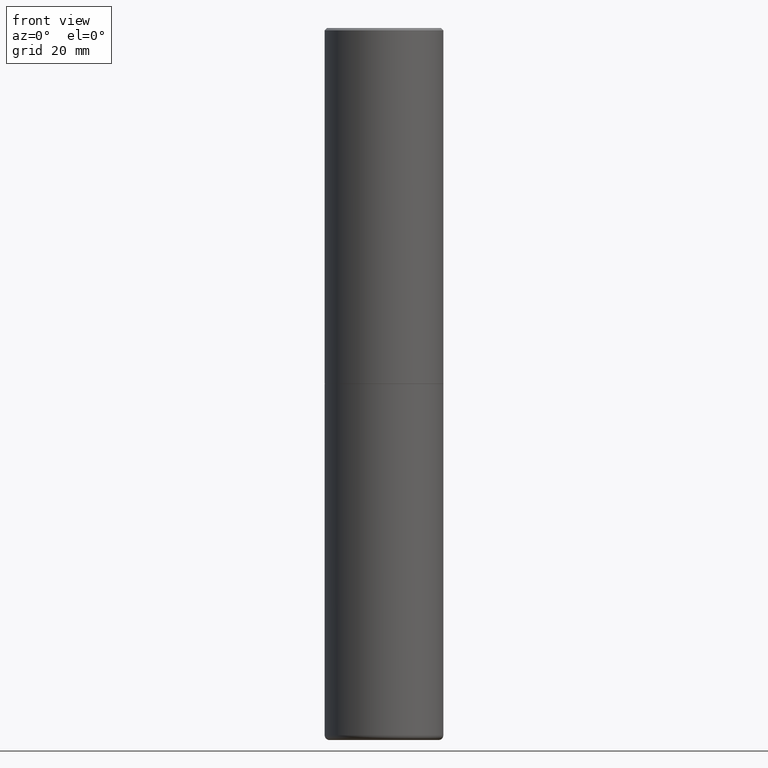
[diagram: clean part render]
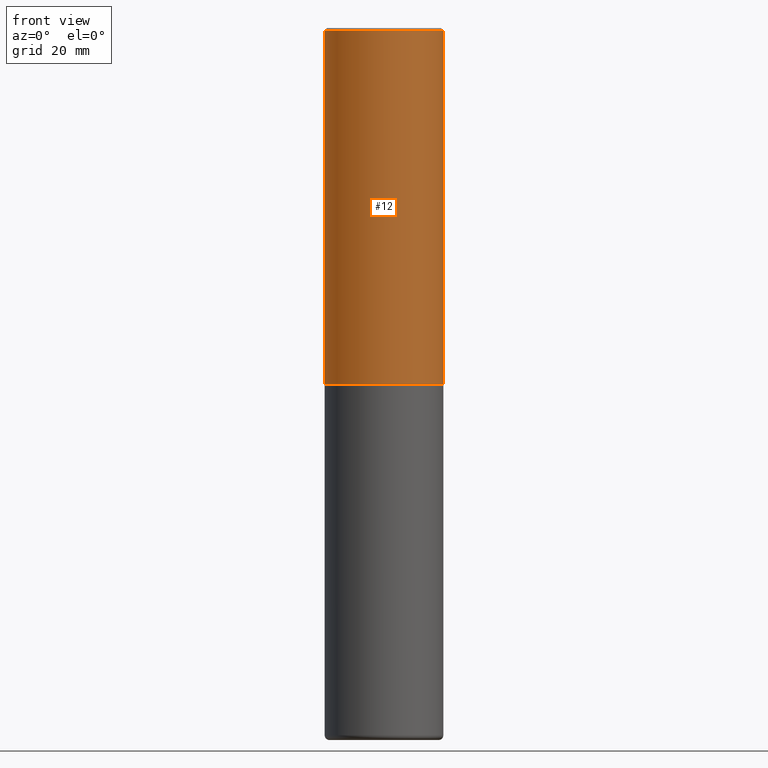
[diagram: same view with one face highlighted and labeled with its STEP entity id]
A machine part, front view. The second image highlights one B-rep face of the part: STEP entity #12.
In plain terms, the highlighted cylindrical surface (partial cylindrical patch) has radius 12.5006 mm, axis along (-0, 0, 1).
Its self-contained STEP definition (entity closure, byte-faithful):
#6 = CARTESIAN_POINT ( 'NONE',  ( 0.4921500000000000319, -3.446223716380123138E-15, -0.02000000000000010797 ) ) ;
#11 = AXIS2_PLACEMENT_3D ( 'NONE', #286, #346, #257 ) ;
#12 = ADVANCED_FACE ( 'NONE', ( #318 ), #151, .T. ) ;
#27 = VERTEX_POINT ( 'NONE', #185 ) ;
#33 = VERTEX_POINT ( 'NONE', #6 ) ;
#37 = LINE ( 'NONE', #223, #174 ) ;
#54 = AXIS2_PLACEMENT_3D ( 'NONE', #118, #288, #285 ) ;
#62 = DIRECTION ( 'NONE',  ( -2.445468806185136597E-29, 3.491481338843145583E-15, 1.000000000000000000 ) ) ;
#84 = CARTESIAN_POINT ( 'NONE',  ( 0.4921500000000003094, -1.374247054968661252E-14, -2.951700000000000212 ) ) ;
#89 = VERTEX_POINT ( 'NONE', #84 ) ;
#93 = DIRECTION ( 'NONE',  ( -2.445468806185136877E-29, 3.491481338843145188E-15, 1.000000000000000000 ) ) ;
#98 = ORIENTED_EDGE ( 'NONE', *, *, #320, .T. ) ;
#106 = ORIENTED_EDGE ( 'NONE', *, *, #277, .F. ) ;
#114 = CIRCLE ( 'NONE', #11, 0.4921500000000003094 ) ;
#118 = CARTESIAN_POINT ( 'NONE',  ( 4.890937612370299433E-31, -6.982962677686328587E-17, -0.02000000000000010797 ) ) ;
#120 = DIRECTION ( 'NONE',  ( -2.445468806185136877E-29, 3.491481338843145188E-15, 1.000000000000000000 ) ) ;
#151 = CYLINDRICAL_SURFACE ( 'NONE', #387, 0.4921500000000001984 ) ;
#167 = EDGE_CURVE ( 'NONE', #281, #33, #235, .T. ) ;
#174 = VECTOR ( 'NONE', #93, 39.37007874015748143 ) ;
#185 = CARTESIAN_POINT ( 'NONE',  ( -0.4921500000000003094, -1.690881473276752982E-15, -2.951700000000000212 ) ) ;
#223 = CARTESIAN_POINT ( 'NONE',  ( -0.4921500000000001984, 3.496936074043334475E-15, -2.420853904668952630E-29 ) ) ;
#224 = LINE ( 'NONE', #260, #297 ) ;
#235 = CIRCLE ( 'NONE', #54, 0.4921500000000000319 ) ;
#257 = DIRECTION ( 'NONE',  ( 1.000000000000000000, -6.982962677686265922E-15, 0.000000000000000000 ) ) ;
#258 = DIRECTION ( 'NONE',  ( 1.000000000000000000, -6.982962677686266711E-15, 4.876176775795935232E-29 ) ) ;
#260 = CARTESIAN_POINT ( 'NONE',  ( 0.4921500000000001984, -3.436665081823297354E-15, 2.399810400207970443E-29 ) ) ;
#277 = EDGE_CURVE ( 'NONE', #27, #281, #37, .T. ) ;
#281 = VERTEX_POINT ( 'NONE', #390 ) ;
#285 = DIRECTION ( 'NONE',  ( 1.000000000000000000, -6.982962677686265922E-15, 0.000000000000000000 ) ) ;
#286 = CARTESIAN_POINT ( 'NONE',  ( 7.218290275216666916E-29, -1.030580546786331359E-14, -2.951700000000000212 ) ) ;
#288 = DIRECTION ( 'NONE',  ( -2.445468806185136597E-29, 3.491481338843145583E-15, 1.000000000000000000 ) ) ;
#297 = VECTOR ( 'NONE', #120, 39.37007874015748143 ) ;
#318 = FACE_OUTER_BOUND ( 'NONE', #403, .T. ) ;
#320 = EDGE_CURVE ( 'NONE', #27, #89, #114, .T. ) ;
#327 = EDGE_CURVE ( 'NONE', #89, #33, #224, .T. ) ;
#345 = ORIENTED_EDGE ( 'NONE', *, *, #327, .T. ) ;
#346 = DIRECTION ( 'NONE',  ( -2.445468806185136597E-29, 3.491481338843145583E-15, 1.000000000000000000 ) ) ;
#348 = ORIENTED_EDGE ( 'NONE', *, *, #167, .F. ) ;
#387 = AXIS2_PLACEMENT_3D ( 'NONE', #413, #62, #258 ) ;
#390 = CARTESIAN_POINT ( 'NONE',  ( -0.4921500000000000319, 3.366835455046432873E-15, -0.02000000000000010797 ) ) ;
#403 = EDGE_LOOP ( 'NONE', ( #106, #98, #345, #348 ) ) ;
#413 = CARTESIAN_POINT ( 'NONE',  ( 0.000000000000000000, 0.000000000000000000, 0.000000000000000000 ) ) ;